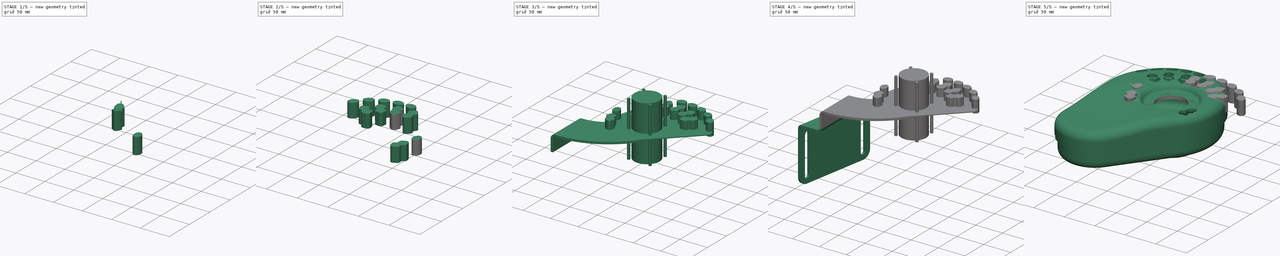
[diagram: build sequence overview — one tinted view per stage of 5, left to right]
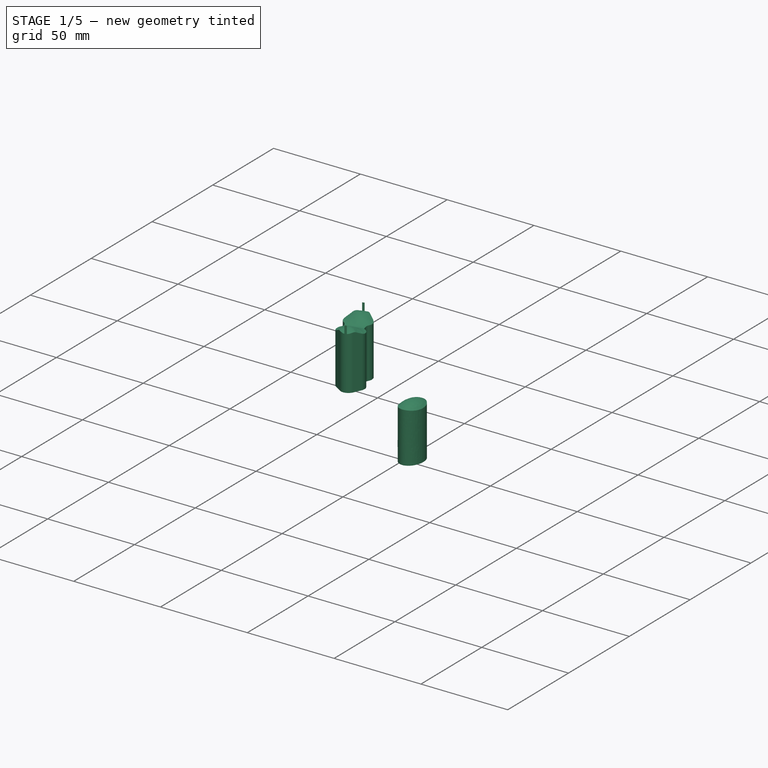
[diagram: stage 1 of 5 — iso view after this stage's code; geometry added in this stage tinted green]
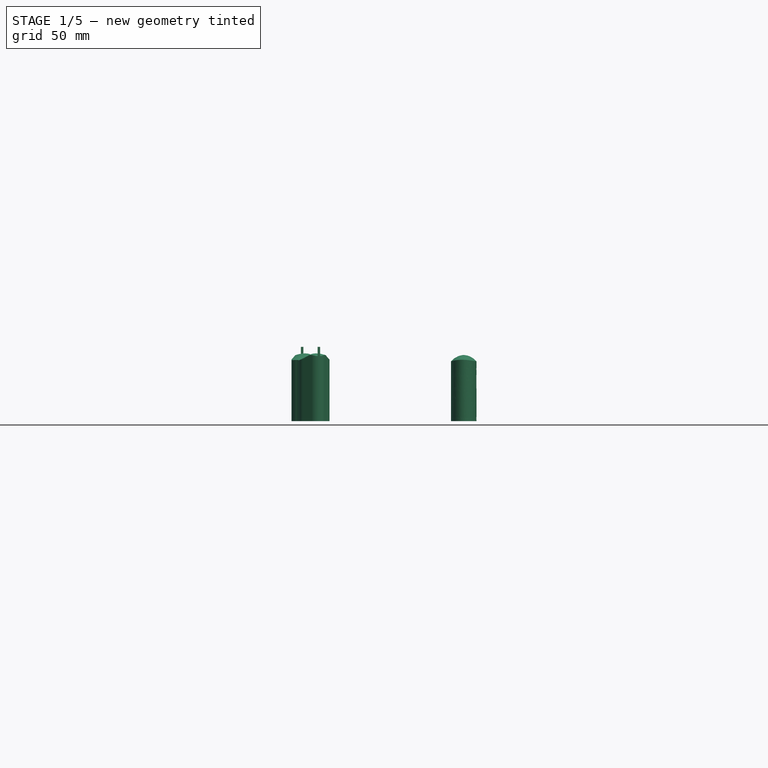
[diagram: stage 1 of 5 — front view after this stage's code; geometry added in this stage tinted green]
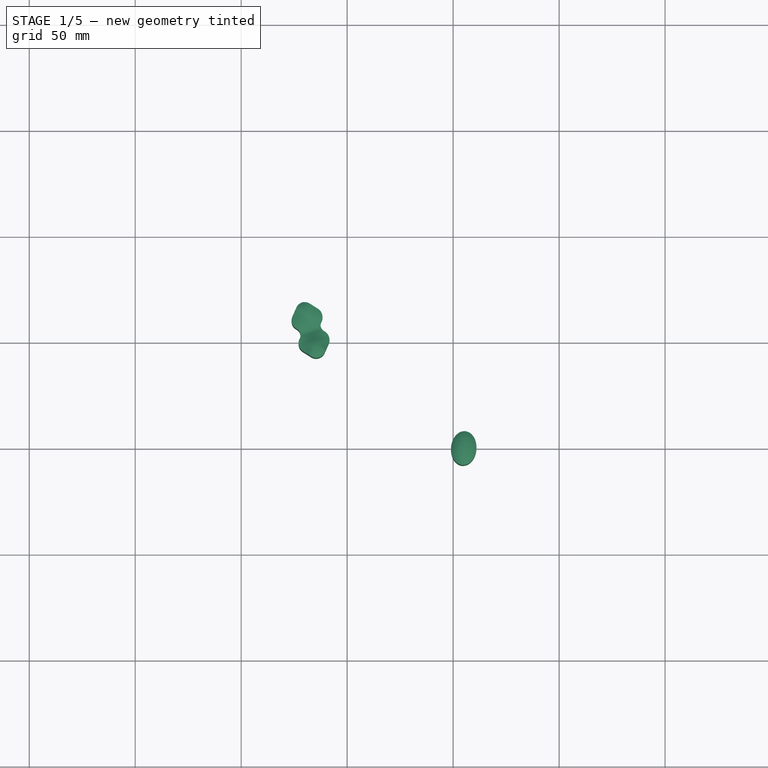
[diagram: stage 1 of 5 — top view after this stage's code; geometry added in this stage tinted green]
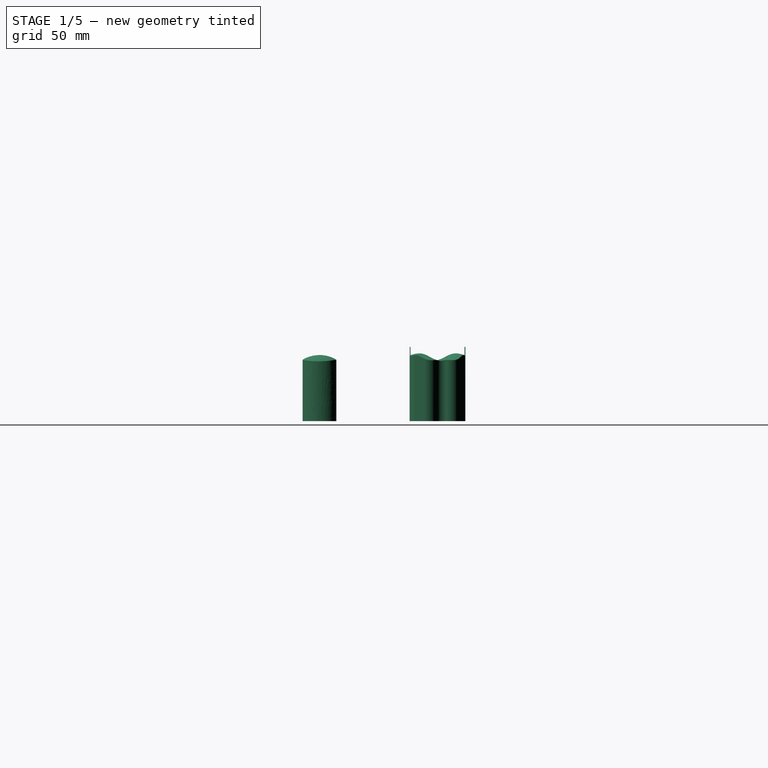
[diagram: stage 1 of 5 — right view after this stage's code; geometry added in this stage tinted green]
FCSTD DOCUMENT  (FreeCAD 0.17R6700 (Git))
Label: pcb_shape
License: All rights reserved
LicenseURL: http://en.wikipedia.org/wiki/All_rights_reserved
objects: Part::FeaturePython×16, Sketcher::SketchObject×6, PartDesign::Pad×3, Part::Mirroring×3, PartDesign::Pocket×3, Part::Cut×2, Part::Feature×2, Part::Box×1, Part::Fillet×1, Part::MultiCommon×1, Part::MultiFuse×1
note: 45 computed .brp shape members not serialized (recipe doc carries the construction recipe); baked Part::Feature solids carry a one-line shape summary decoded from their .brp

FEATURE [Part::Feature] Part__Feature007  label="b1_hole"
  Placement = pos=(-9,78,8) rot=(0,0,-1;0.191986rad)
  shape: bbox 35.08 x 29.36 x 31.2 mm, 4 faces (baked)
FEATURE [Part::Feature] Part__Feature008  label="sw2_hole"
  Placement = pos=(4.8,56.8,7) rot=(0,0,-1;0.087266rad)
  shape: bbox 18.83 x 34.4 x 36.84 mm, 30 faces (baked)
FEATURE [Part::FeaturePython] Clone008  label="sw3_hole"  # Draft clone (typed FeaturePython)
  Objects = -> [Part__Feature008]
  Placement = pos=(-17.3,55.7,8) rot=(0,0,1;0.296706rad)
  Scale = (1,1,1)
FEATURE [Part::FeaturePython] Clone011  label="b2_hole"  # Draft clone (typed FeaturePython)
  Objects = -> [Part__Feature007]
  Placement = pos=(-29,77,8) rot=(0,0,1;0.05236rad)
  Scale = (1,1,1)
FEATURE [Part::FeaturePython] Clone012  label="b3_hole"  # Draft clone (typed FeaturePython)
  Objects = -> [Clone011]
  Placement = pos=(-48.7,72,8) rot=(0,0,1;0.349066rad)
  Scale = (1,1,1)
FEATURE [Part::FeaturePython] Clone013  label="b4_hole"  # Draft clone (typed FeaturePython)
  Objects = -> [Clone012]
  Placement = pos=(-67,62.5,8) rot=(0,0,1;0.610865rad)
  Scale = (1,1,1)
FEATURE [Part::FeaturePython] Clone014  label="b5_hole"  # Draft clone (typed FeaturePython)
  Objects = -> [Clone013]
  Placement = pos=(-81.5,47,8) rot=(0,0,1;0.942478rad)
  Scale = (1,1,1)
FEATURE [Part::FeaturePython] Clone016  label="b6_hole"  # Draft clone (typed FeaturePython)
  Objects = -> [Clone014]
  Placement = pos=(55,0,8) rot=(0,0,1;1.48353rad)
  Scale = (1,1,1)
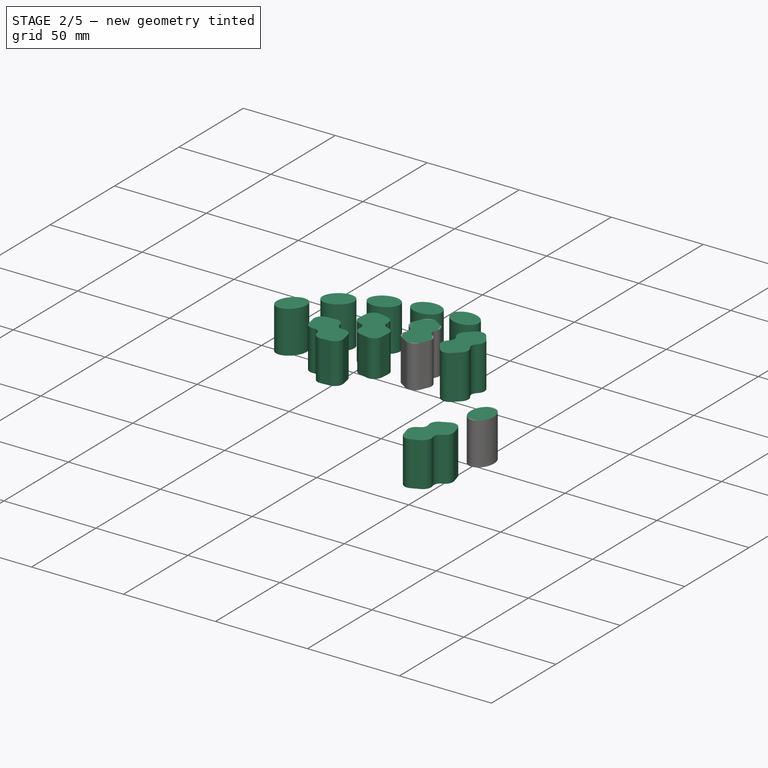
[diagram: stage 2 of 5 — iso view after this stage's code; geometry added in this stage tinted green]
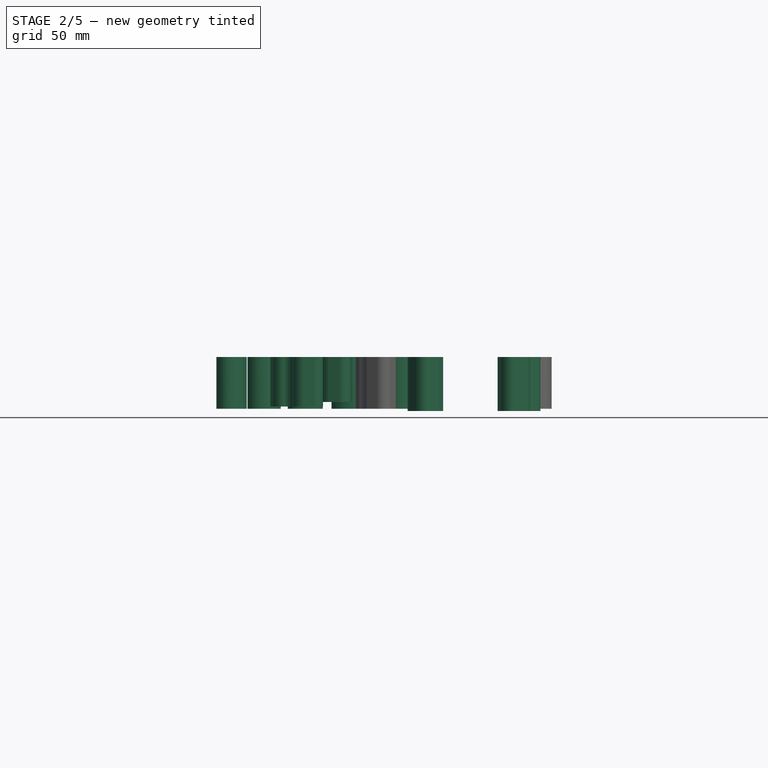
[diagram: stage 2 of 5 — front view after this stage's code; geometry added in this stage tinted green]
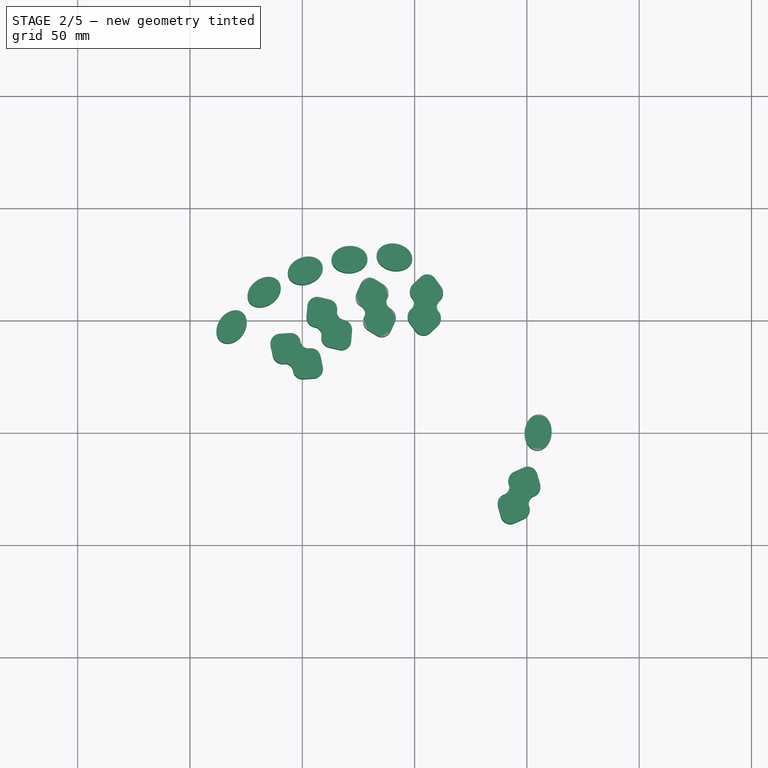
[diagram: stage 2 of 5 — top view after this stage's code; geometry added in this stage tinted green]
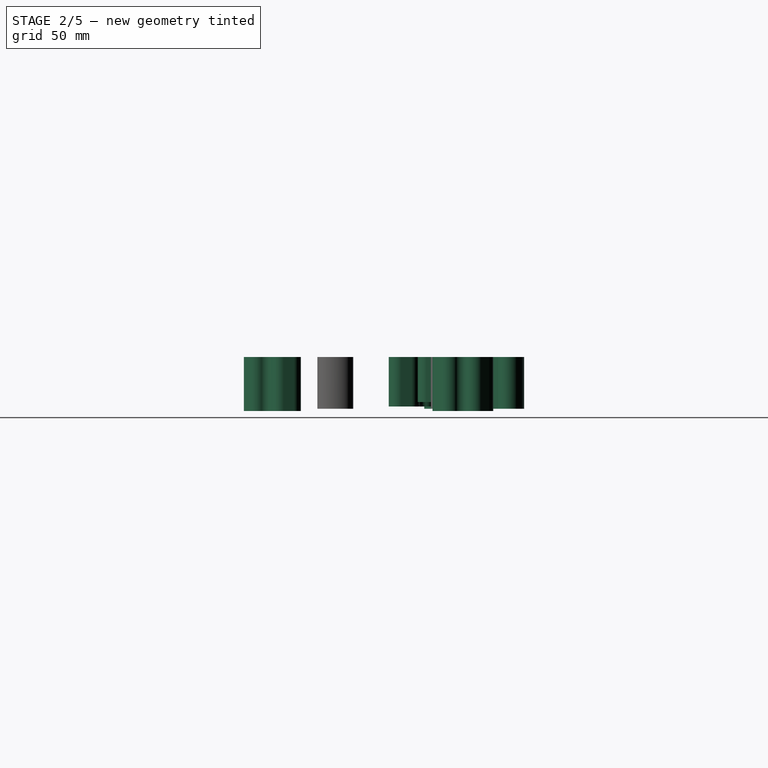
[diagram: stage 2 of 5 — right view after this stage's code; geometry added in this stage tinted green]
FEATURE [Part::Box] Box  label="Cube"
  Height = 27
  Length = 400
  Placement = pos=(-200,-200,15) rot=(0,0,1;0rad)
  Width = 400
FEATURE [Part::FeaturePython] Clone009  label="sw4_hole"  # Draft clone (typed FeaturePython)
  Objects = -> [Clone008]
  Placement = pos=(-38,48.5,11) rot=(0,0,1;0.628319rad)
  Scale = (1,1,1)
FEATURE [Part::FeaturePython] Clone010  label="sw1_hole"  # Draft clone (typed FeaturePython)
  Objects = -> [Clone009]
  Placement = pos=(46.5,-28,7) rot=(0,0,-1;0.436332rad)
  Scale = (1,1,1)
FEATURE [Part::FeaturePython] Clone015  label="sw5_hole"  # Draft clone (typed FeaturePython)
  Objects = -> [Clone009]
  Placement = pos=(-52.5,34,9) rot=(0,0,1;0.925025rad)
  Scale = (1,1,1)
FEATURE [Part::MultiFuse] Fusion006
  Shapes = -> [Clone016,Clone014,Clone009,Clone008,Part__Feature007,Clone015,Clone010,Clone011,Part__Feature008,Clone012,Clone013]
FEATURE [Part::Cut] Cut
  Base = -> Fusion006
  Tool = -> Box
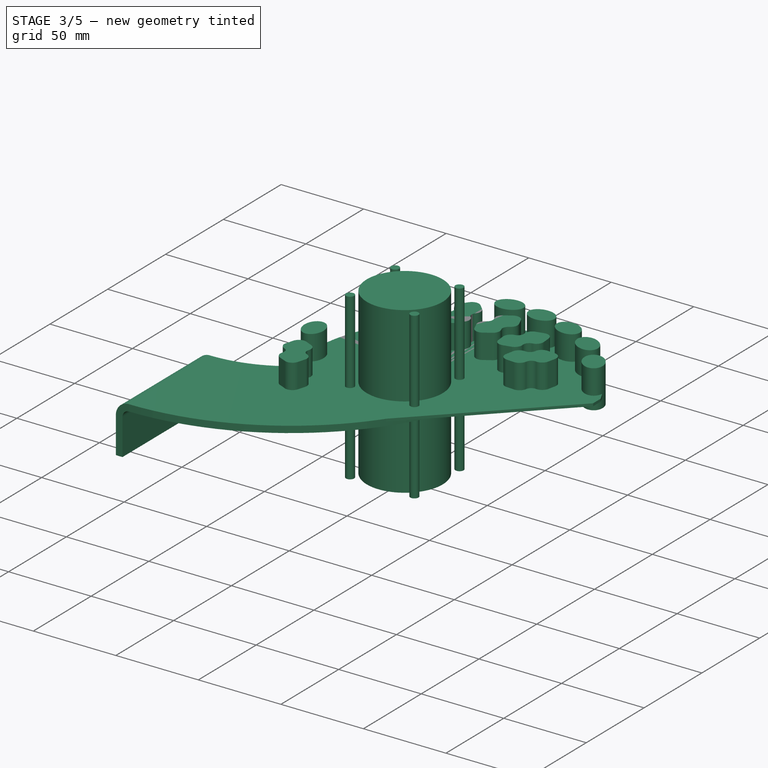
[diagram: stage 3 of 5 — iso view after this stage's code; geometry added in this stage tinted green]
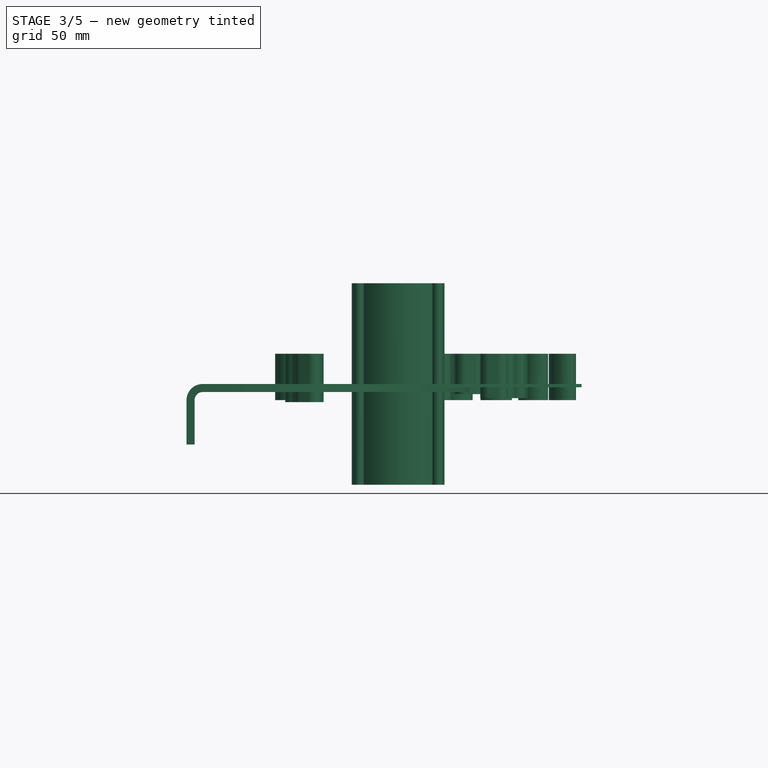
[diagram: stage 3 of 5 — front view after this stage's code; geometry added in this stage tinted green]
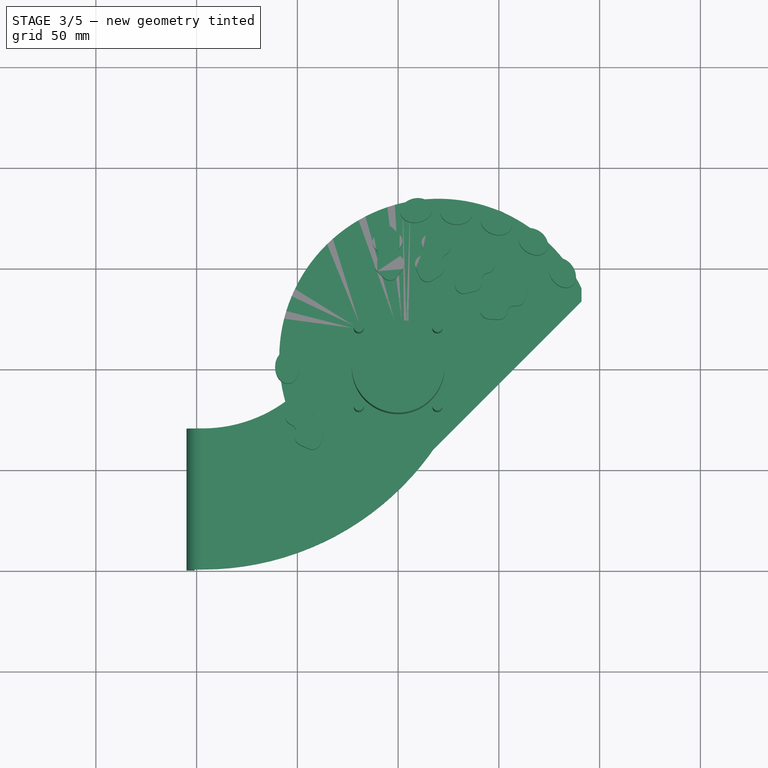
[diagram: stage 3 of 5 — top view after this stage's code; geometry added in this stage tinted green]
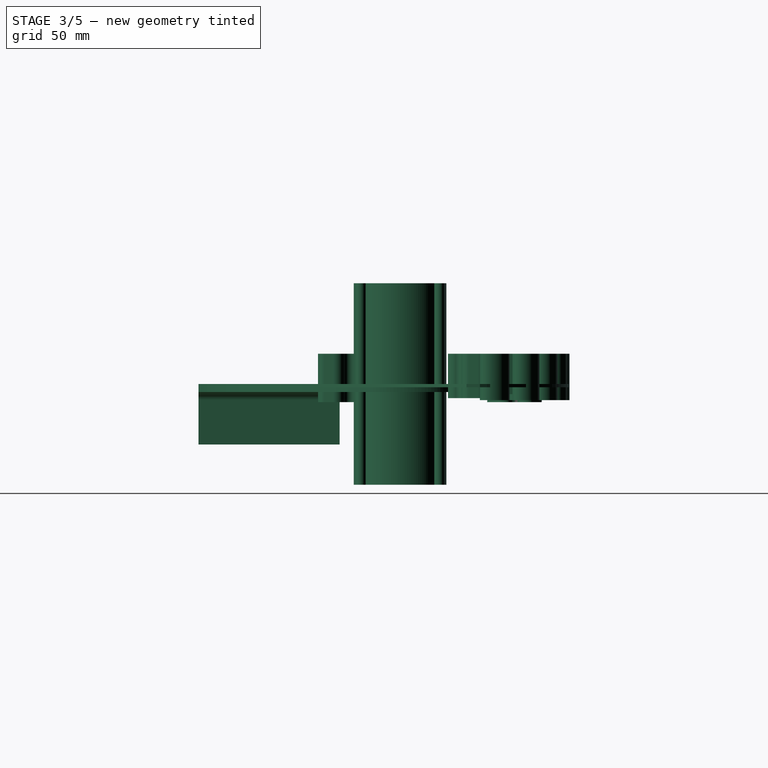
[diagram: stage 3 of 5 — right view after this stage's code; geometry added in this stage tinted green]
FEATURE [Sketcher::SketchObject] Sketch
  Placement = pos=(0,0,-1.6) rot=(0,0,1;0rad)
  sketch-geometry (14):
    g0: LineSegment [constr] StartX=59 StartY=-47 StartZ=0 EndX=-41 EndY=-47 EndZ=0
    g1: LineSegment [constr] StartX=59 StartY=-47 StartZ=0 EndX=59 EndY=53 EndZ=0
    g2: Circle CenterX=-19.5 CenterY=-19.5 CenterZ=0 NormalX=0 NormalY=0 NormalZ=1 Radius=2.7
    g3: Circle CenterX=-19.5 CenterY=19.5 CenterZ=0 NormalX=0 NormalY=0 NormalZ=1 Radius=2.7
    g4: Circle CenterX=19.5 CenterY=19.5 CenterZ=0 NormalX=0 NormalY=0 NormalZ=1 Radius=2.7
    g5: Circle CenterX=19.5 CenterY=-19.5 CenterZ=0 NormalX=0 NormalY=0 NormalZ=1 Radius=2.7
    g6: Circle CenterX=0 CenterY=0 CenterZ=0 NormalX=0 NormalY=0 NormalZ=1 Radius=23.5
    g7: ArcOfCircle CenterX=-20 CenterY=5 CenterZ=0 NormalX=0 NormalY=0 NormalZ=1 Radius=79 StartAngle=9.63004e-07 EndAngle=2.68767
    g8: LineSegment StartX=-91 StartY=33 StartZ=0 EndX=-11 EndY=-47 EndZ=0
    g9: ArcOfCircle CenterX=-20 CenterY=5 CenterZ=0 NormalX=0 NormalY=0 NormalZ=1 Radius=79 StartAngle=5.56472 EndAngle=6.28318
    g10: LineSegment StartX=39.4727 StartY=-47 StartZ=0 EndX=-11 EndY=-47 EndZ=0
    g11: LineSegment StartX=59 StartY=4.99992 StartZ=0 EndX=59 EndY=5.00008 EndZ=0
    g12: LineSegment StartX=-91 StartY=33 StartZ=0 EndX=-91 EndY=39.641 EndZ=0
    g13: LineSegment [constr] StartX=0 StartY=84 StartZ=0 EndX=-80 EndY=84 EndZ=0
  constraints (42):
    c: Horizontal(g0)
    c: DistanceX(g0,g0) = 100
    c: Coincident(g1,g0)
    c: Vertical(g1)
    c: DistanceY(g1,g1) = 100
    c: Symmetric(g5,g2,g-2)
    c: Symmetric(g3,g2,g-1)
    c: Symmetric(g3,g4,g-2)
    c: Equal(g4,g3)
    c: Equal(g3,g2)
    c: Equal(g2,g5)
    c: Radius(g5) = 2.7
    c: DistanceX(g-1,g5) = 19.5
    c: DistanceY(g5,g-1) = 19.5
    c: DistanceY(g0,g-1) = 47
    c: DistanceX(g-1,g0) = 59
    c: Coincident(g6,g-1)
    c: Radius(g6) = 23.5
    c: DistanceX(g7,g-1) = 20
    c: Radius(g7) = 79
    c: PointOnObject(g8,g0)
    c: Angle(g8) = -0.785398
    c: DistanceX(g8,g0) = 70
    c: Coincident(g9,g7)
    c: PointOnObject(g9,g1)
    c: PointOnObject(g9,g0)
    c: Coincident(g10,g9)
    c: Horizontal(g10)
    c: Coincident(g8,g10)
    c: Coincident(g11,g9)
    c: Vertical(g11)
    c: Vertical(g12)
    c: Coincident(g7,g12)
    c: Coincident(g8,g12)
    c: DistanceX(g8,g11) = 150
    c: Coincident(g7,g11)
    c: PointOnObject(g13,g-2)
    c: Horizontal(g13)
    c: DistanceX(g13,g13) = 80
    c: Tangent(g13,g7)
    c: DistanceY(g-1,g7) = 5
    c: Equal(g7,g9)
FEATURE [PartDesign::Pad] Pad  label="pcb_shape"
  Length = 1.6
  Length2 = 100
  Placement = pos=(0,0,-1.6) rot=(0,0,1;0rad)
  Sketch = -> Sketch
  Type = 0
FEATURE [Part::Mirroring] Part__Mirroring  label="pcb_shape (Mirror #1)"
  Base = (0,0,0)
  Normal = (1,0,0)
  Source = -> Pad
FEATURE [Sketcher::SketchObject] Sketch019
  sketch-geometry (5):
    g0: ArcOfCircle CenterX=0 CenterY=0 CenterZ=0 NormalX=0 NormalY=0 NormalZ=1 Radius=35 StartAngle=5.89314 EndAngle=9.03474
    g1: ArcOfCircle CenterX=-97 CenterY=39.8769 CenterZ=0 NormalX=0 NormalY=0 NormalZ=1 Radius=69.8769 StartAngle=4.71239 EndAngle=5.89314
    g2: ArcOfCircle CenterX=-97 CenterY=39.8769 CenterZ=0 NormalX=0 NormalY=0 NormalZ=1 Radius=139.877 StartAngle=4.71239 EndAngle=5.89314
    g3: LineSegment StartX=-97 StartY=-100 StartZ=0 EndX=-97 EndY=-30 EndZ=0
    g4: LineSegment [constr] StartX=-97 StartY=39.8769 StartZ=0 EndX=-97 EndY=-30 EndZ=0
  constraints (16):
    c: Coincident(g0,g-1)
    c: Radius(g0) = 35
    c: Coincident(g1,g0)
    c: Tangent(g1,g0)
    c: Coincident(g0,g2)
    c: Tangent(g0,g2)
    c: Coincident(g3,g2)
    c: Coincident(g3,g1)
    c: Coincident(g4,g1)
    c: PointOnObject(g1,g4)
    c: Coincident(g2,g4)
    c: Angle(g4) = -1.5708
    c: Parallel(g3,g4)
    c: Distance(g3) = 70
    c: DistanceX(g1,g-1) = 97
    c: DistanceY(g1,g-1) = 30
FEATURE [PartDesign::Pad] Pad005
  Length = 4
  Length2 = 100
  Reversed = true
  Sketch = -> Sketch019
  Type = 0
FEATURE [Part::FeaturePython] Bend003  # WARN: FeaturePython — macro-defined, semantics opaque (R4)
  angle = 90
  baseObject = -> Pad005 [Face3]
  gap1 = 0
  gap2 = 0
  invert = false
  length = 22
  radius = 4
  reliefd = 2
  reliefw = 0
FEATURE [Sketcher::SketchObject] Sketch014
  Placement = pos=(0,0,-50) rot=(0,0,1;0rad)
  sketch-geometry (5):
    g0: Circle CenterX=0 CenterY=0 CenterZ=0 NormalX=0 NormalY=0 NormalZ=1 Radius=23
    g1: Circle CenterX=19.5 CenterY=-19.5 CenterZ=0 NormalX=0 NormalY=0 NormalZ=1 Radius=2.5
    g2: Circle CenterX=19.5 CenterY=19.5 CenterZ=0 NormalX=0 NormalY=0 NormalZ=1 Radius=2.5
    g3: Circle CenterX=-19.5 CenterY=19.5 CenterZ=0 NormalX=0 NormalY=0 NormalZ=1 Radius=2.5
    g4: Circle CenterX=-19.5 CenterY=-19.5 CenterZ=0 NormalX=0 NormalY=0 NormalZ=1 Radius=2.5
  constraints (11):
    c: Coincident(g0,g-1)
    c: Equal(g3,g4)
    c: Equal(g4,g1)
    c: Equal(g1,g2)
    c: Symmetric(g2,g1,g-1)
    c: Symmetric(g1,g4,g-2)
    c: Symmetric(g4,g3,g-1)
    c: DistanceX(g3,g-1) = 19.5
    c: DistanceY(g-1,g3) = 19.5
    c: Radius(g3) = 2.5
    c: Radius(g0) = 23
FEATURE [PartDesign::Pad] Pad002  label="joystick_pocket001"
  Length = 100
  Length2 = 100
  Placement = pos=(0,0,-50) rot=(0,0,1;0rad)
  Sketch = -> Sketch014
  Type = 0
FEATURE [Part::FeaturePython] Clone  label="Clone of pcb_shape (Mirror #1)"  # Draft clone (typed FeaturePython)
  Objects = -> [Part__Mirroring]
  Scale = (1,1,1)
FEATURE [Part::Mirroring] Part__Mirroring002  label="Cut (Mirror #3)"
  Base = (0,0,0)
  Normal = (1,0,0)
  Source = -> Cut
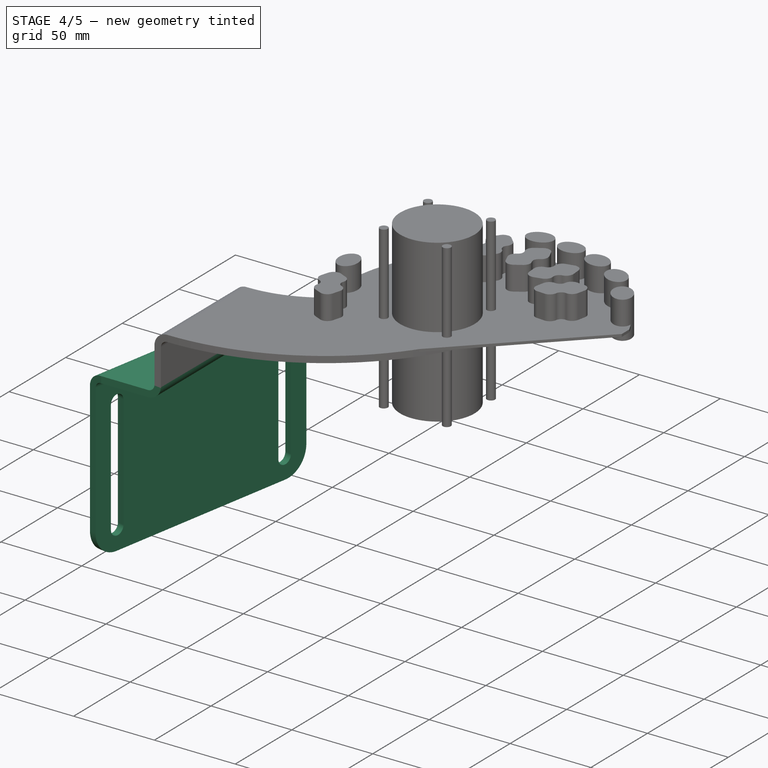
[diagram: stage 4 of 5 — iso view after this stage's code; geometry added in this stage tinted green]
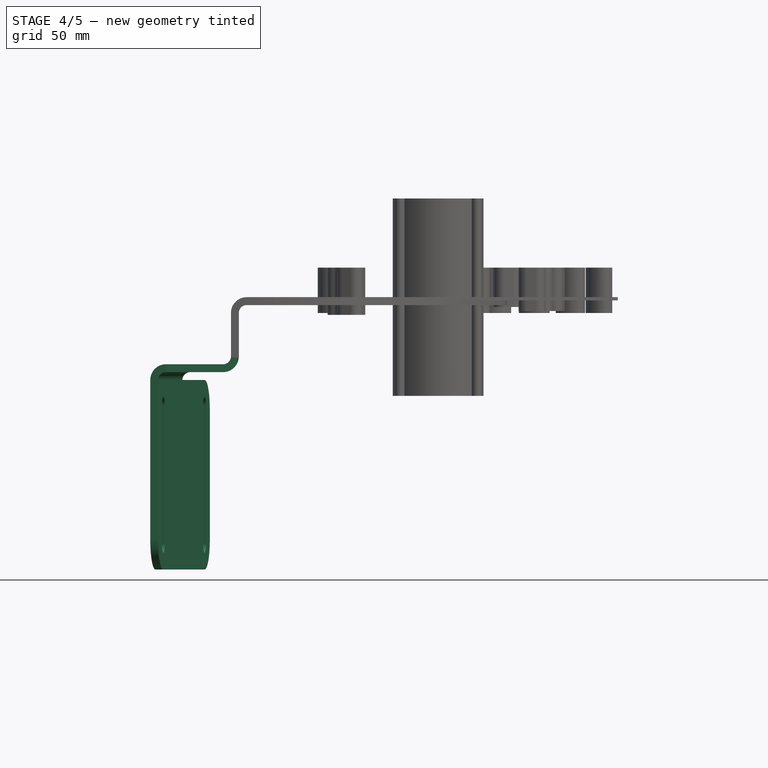
[diagram: stage 4 of 5 — front view after this stage's code; geometry added in this stage tinted green]
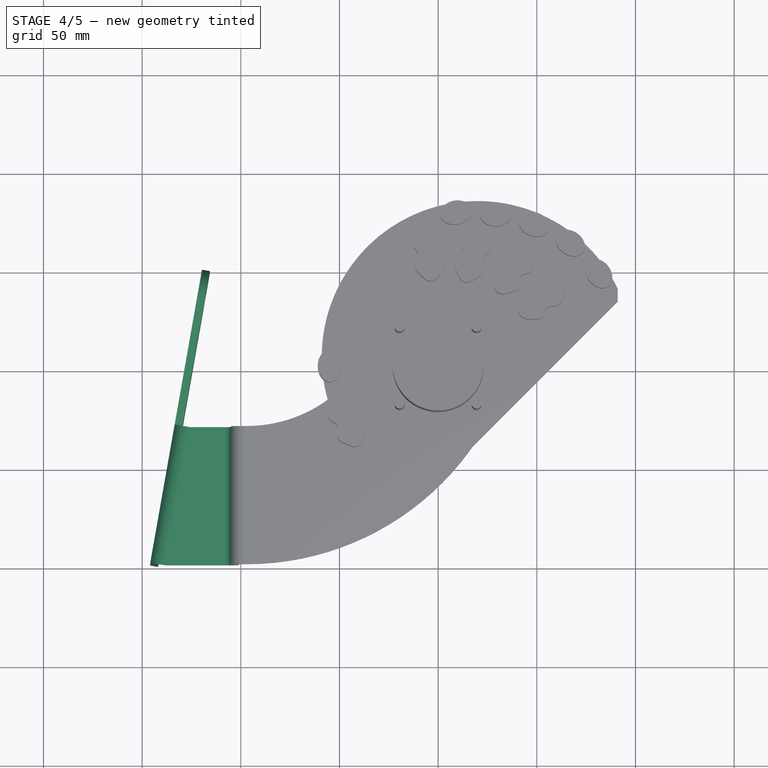
[diagram: stage 4 of 5 — top view after this stage's code; geometry added in this stage tinted green]
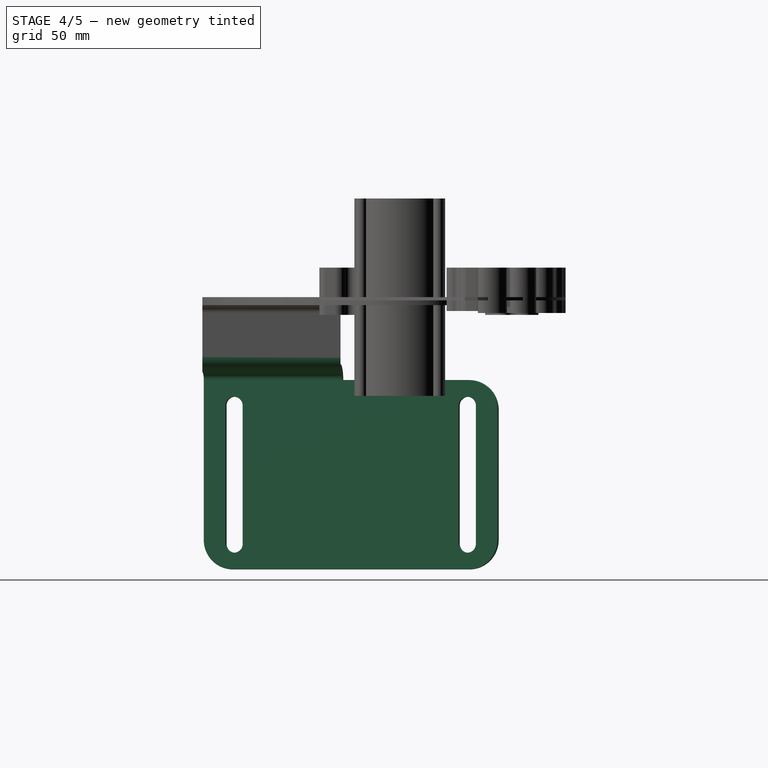
[diagram: stage 4 of 5 — right view after this stage's code; geometry added in this stage tinted green]
FEATURE [Part::FeaturePython] Bend004  # WARN: FeaturePython — macro-defined, semantics opaque (R4)
  angle = 90
  baseObject = -> Bend003 [Face1]
  gap1 = 0
  gap2 = 0
  invert = true
  length = 29
  radius = 4
  reliefd = 1
  reliefw = 0.5
FEATURE [Sketcher::SketchObject] Sketch020
  ExternalGeometry = -> [Bend004]
  Placement = pos=(0,0,-34) rot=(0,0,1;0rad)
  Support = -> Bend004 [Face4]
  sketch-geometry (3):
    g0: LineSegment StartX=-138 StartY=-30 StartZ=0 EndX=-138 EndY=-100 EndZ=0
    g1: LineSegment StartX=-138 StartY=-100 StartZ=0 EndX=-125.657 EndY=-30 EndZ=0
    g2: LineSegment StartX=-125.657 StartY=-30 StartZ=0 EndX=-138 EndY=-30 EndZ=0
  constraints (7):
    c: Coincident(g-4,g0)
    c: Coincident(g0,g-5)
    c: Coincident(g0,g1)
    c: PointOnObject(g1,g-4)
    c: Coincident(g1,g2)
    c: Coincident(g2,g0)
    c: Angle(g1) = 1.39626
FEATURE [PartDesign::Pocket] Pocket
  Length = 5
  Sketch = -> Sketch020
  Type = 1
FEATURE [Part::FeaturePython] Bend  # WARN: FeaturePython — macro-defined, semantics opaque (R4)
  angle = 90
  baseObject = -> Pocket [Face4]
  gap1 = 0
  gap2 = 0
  invert = false
  length = 96
  radius = 4
  reliefd = 1
  reliefw = 0.5
FEATURE [Part::FeaturePython] Extrude  # WARN: FeaturePython — macro-defined, semantics opaque (R4)
  baseObject = -> Bend [Face3]
  gap1 = 0
  gap2 = 0
  length = 80
FEATURE [Part::Fillet] Fillet
  Base = -> Extrude
  Edges = 3 edges r=15: [Edge7,Edge10,Edge20]
FEATURE [Sketcher::SketchObject] Sketch021
  ExternalGeometry = -> [Fillet]
  Placement = pos=(-124.616,24.9732,0) rot=(-0.510274,0.60812,0.60812;4.08526rad)
  Support = -> Fillet [Face1]
  sketch-geometry (11):
    g0: ArcOfCircle CenterX=-13.0957 CenterY=-55 CenterZ=0 NormalX=0 NormalY=0 NormalZ=1 Radius=4.5 StartAngle=0 EndAngle=3.14159
    g1: ArcOfCircle CenterX=-13.0957 CenterY=-125 CenterZ=0 NormalX=0 NormalY=0 NormalZ=1 Radius=4.5 StartAngle=3.14159 EndAngle=6.28319
    g2: LineSegment StartX=-17.5957 StartY=-55 StartZ=0 EndX=-17.5957 EndY=-125 EndZ=0
    g3: LineSegment StartX=-8.59571 StartY=-55 StartZ=0 EndX=-8.59571 EndY=-125 EndZ=0
    g4: ArcOfCircle CenterX=106.904 CenterY=-55 CenterZ=0 NormalX=0 NormalY=0 NormalZ=1 Radius=4.5 StartAngle=0 EndAngle=3.14159
    g5: ArcOfCircle CenterX=106.904 CenterY=-125 CenterZ=0 NormalX=0 NormalY=0 NormalZ=1 Radius=4.5 StartAngle=3.14159 EndAngle=6.28319
    g6: LineSegment StartX=102.404 StartY=-55 StartZ=0 EndX=102.404 EndY=-125 EndZ=0
    g7: LineSegment StartX=111.404 StartY=-55 StartZ=0 EndX=111.404 EndY=-125 EndZ=0
    g8: LineSegment [constr] StartX=-28.6356 StartY=-90 StartZ=0 EndX=122.444 EndY=-90 EndZ=0
    g9: LineSegment [constr] StartX=46.9043 StartY=-42 StartZ=0 EndX=46.9043 EndY=-138 EndZ=0
    g10: LineSegment [constr] StartX=46.9043 StartY=-42 StartZ=0 EndX=51.3644 EndY=-42 EndZ=0
  constraints (28):
    c: Tangent(g0,g3) = 1.5708
    c: Tangent(g0,g2) = -1.5708
    c: Tangent(g2,g1) = -1.5708
    c: Tangent(g3,g1) = 1.5708
    c: Vertical(g2)
    c: Equal(g0,g1)
    c: Tangent(g4,g7) = 1.5708
    c: Tangent(g4,g6) = -1.5708
    c: Tangent(g6,g5) = -1.5708
    c: Tangent(g7,g5) = 1.5708
    c: Vertical(g6)
    c: Equal(g4,g5)
    c: PointOnObject(g8,g-4)
    c: PointOnObject(g8,g-7)
    c: Symmetric(g4,g0,g9)
    c: Equal(g0,g4)
    c: Equal(g6,g3)
    c: Radius(g0) = 4.5
    c: DistanceX(g0,g4) = 120
    c: Symmetric(g1,g0,g8)
    c: Vertical(g9)
    c: Symmetric(g-4,g-7,g9)
    c: Symmetric(g-4,g-4,g8)
    c: DistanceY(g1,g0) = 70
    c: PointOnObject(g9,g-6)
    c: Coincident(g10,g9)
    c: Coincident(g10,g-3)
    c: Horizontal(g10)
FEATURE [PartDesign::Pocket] Pocket001
  Length = 5
  Sketch = -> Sketch021
  Type = 1
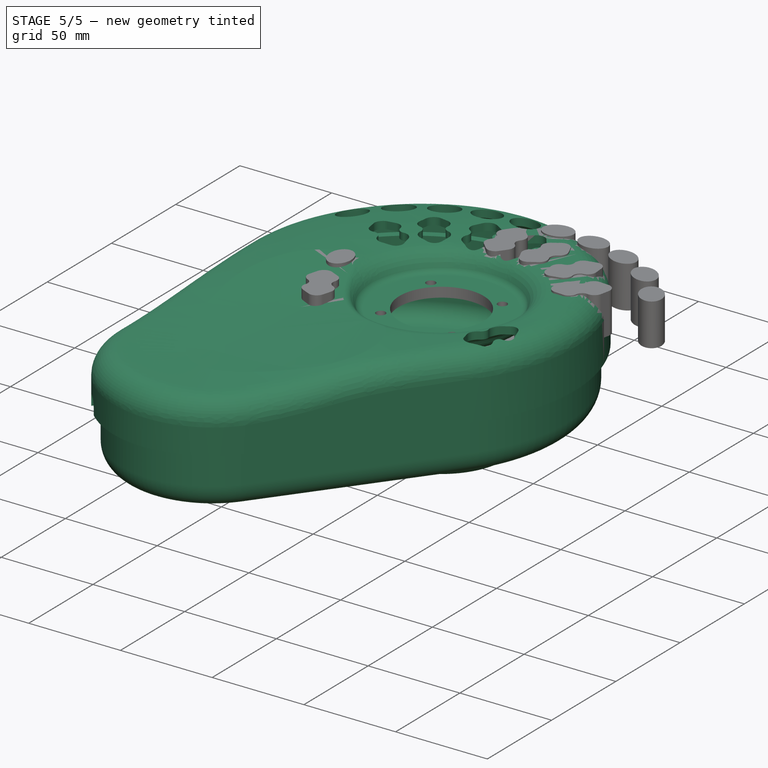
[diagram: stage 5 of 5 — iso view after this stage's code; geometry added in this stage tinted green]
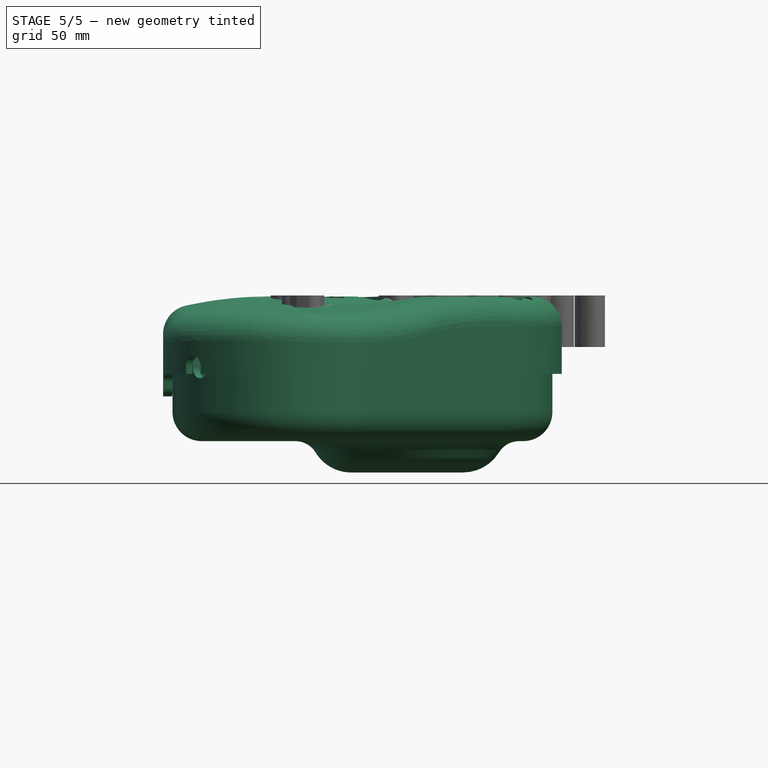
[diagram: stage 5 of 5 — front view after this stage's code; geometry added in this stage tinted green]
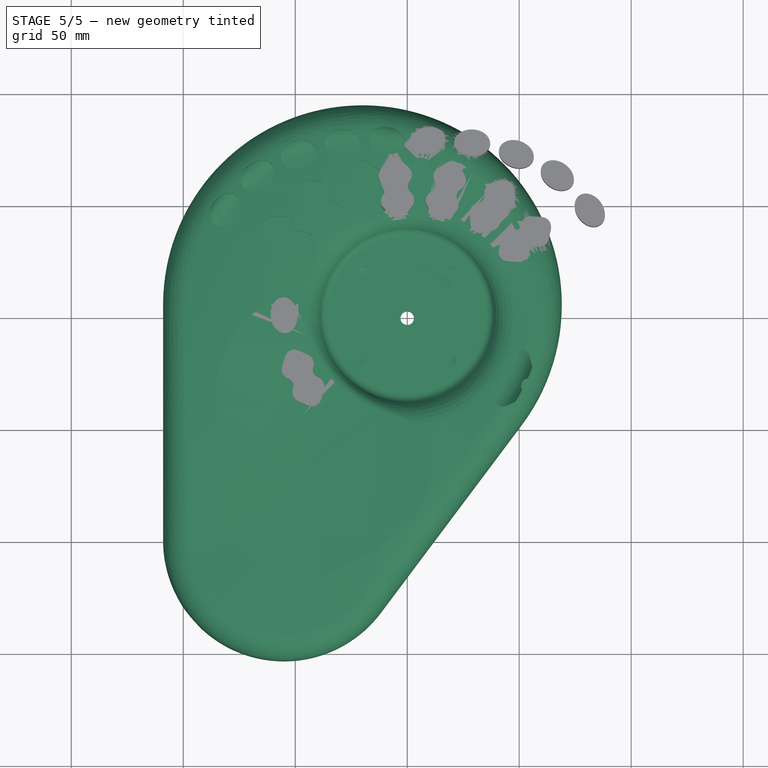
[diagram: stage 5 of 5 — top view after this stage's code; geometry added in this stage tinted green]
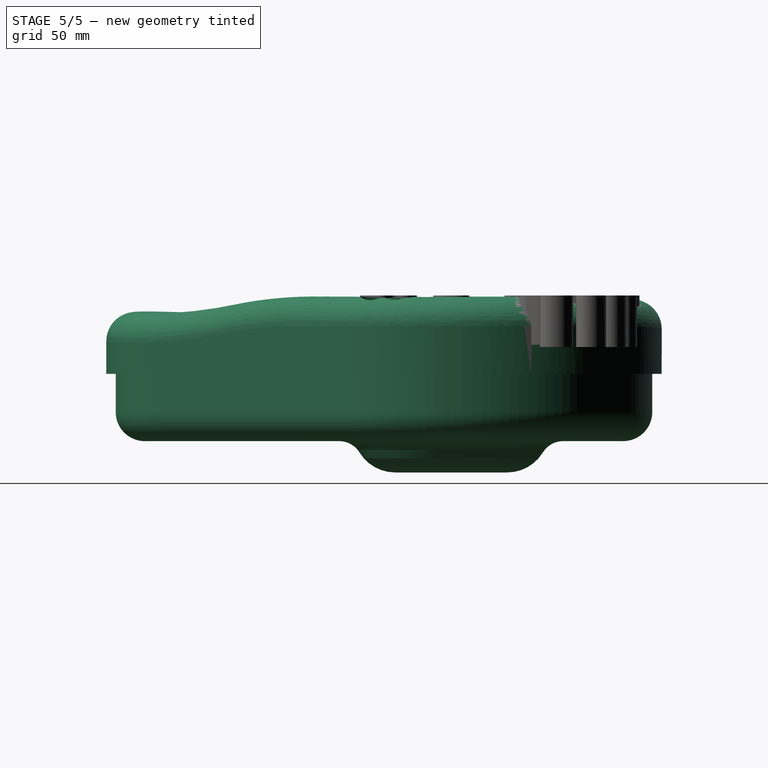
[diagram: stage 5 of 5 — right view after this stage's code; geometry added in this stage tinted green]
FEATURE [Part::FeaturePython] collar_top_01  # a2plus imported part (geometry in sourceFile) (typed FeaturePython)
  fixedPosition = true
  sourceFile = <userpath>/uw/keypad/hw/collar_top.fcstd
  timeLastImport = 1.51211e+09
  updateColors = true
FEATURE [Part::FeaturePython] collar_bottom_01  # a2plus imported part (geometry in sourceFile) (typed FeaturePython)
  fixedPosition = false
  sourceFile = <userpath>/uw/keypad/hw/collar_bottom.fcstd
  timeLastImport = 1.51211e+09
  updateColors = true
FEATURE [Part::Cut] Cut001
  Base = -> Pocket001
  Tool = -> Pad002
FEATURE [Sketcher::SketchObject] Sketch022
  ExternalGeometry = -> [Cut001]
  Placement = pos=(-101,1e-11,0) rot=(0.57735,0.57735,0.57735;2.0944rad)
  Support = -> Cut001 [Face36]
  sketch-geometry (10):
    g0: LineSegment [constr] StartX=-85 StartY=-18 StartZ=0 EndX=-45 EndY=-18 EndZ=0
    g1: LineSegment [constr] StartX=-65 StartY=-8 StartZ=0 EndX=-65 EndY=-30 EndZ=0
    g2: ArcOfCircle CenterX=-85 CenterY=-16 CenterZ=0 NormalX=0 NormalY=0 NormalZ=1 Radius=2.75 StartAngle=0 EndAngle=3.14159
    g3: ArcOfCircle CenterX=-85 CenterY=-20 CenterZ=0 NormalX=0 NormalY=0 NormalZ=1 Radius=2.75 StartAngle=3.14159 EndAngle=6.28319
    g4: LineSegment StartX=-87.75 StartY=-16 StartZ=0 EndX=-87.75 EndY=-20 EndZ=0
    g5: LineSegment StartX=-82.25 StartY=-16 StartZ=0 EndX=-82.25 EndY=-20 EndZ=0
    g6: ArcOfCircle CenterX=-45 CenterY=-16 CenterZ=0 NormalX=0 NormalY=0 NormalZ=1 Radius=2.75 StartAngle=0 EndAngle=3.14159
    g7: ArcOfCircle CenterX=-45 CenterY=-20 CenterZ=0 NormalX=0 NormalY=0 NormalZ=1 Radius=2.75 StartAngle=3.14159 EndAngle=6.28319
    g8: LineSegment StartX=-47.75 StartY=-16 StartZ=0 EndX=-47.75 EndY=-20 EndZ=0
    g9: LineSegment StartX=-42.25 StartY=-16 StartZ=0 EndX=-42.25 EndY=-20 EndZ=0
  constraints (24):
    c: PointOnObject(g1,g-6)
    c: PointOnObject(g1,g-5)
    c: Symmetric(g-5,g-5,g1)
    c: DistanceX(g0,g0) = 40
    c: Tangent(g2,g5) = 1.5708
    c: Tangent(g2,g4) = -1.5708
    c: Tangent(g4,g3) = -1.5708
    c: Tangent(g5,g3) = 1.5708
    c: Vertical(g4)
    c: Equal(g2,g3)
    c: Radius(g3) = 2.75
    c: Symmetric(g2,g3,g0)
    c: Symmetric(g0,g0,g1)
    c: DistanceY(g4,g4) = 4
    c: Tangent(g6,g9) = 1.5708
    c: Tangent(g6,g8) = -1.5708
    c: Tangent(g8,g7) = -1.5708
    c: Tangent(g9,g7) = 1.5708
    c: Vertical(g8)
    c: Equal(g6,g7)
    c: Symmetric(g7,g6,g0)
    c: Equal(g8,g5)
    c: Equal(g2,g6)
    c: DistanceY(g2,g-6) = 8
FEATURE [PartDesign::Pocket] Pocket002
  Length = 5
  Sketch = -> Sketch022
  Type = 1
FEATURE [Part::Mirroring] Part__Mirroring001  label="Pocket002 (Mirror #2)"
  Base = (0,0,0)
  Normal = (1,0,0)
  Source = -> Pocket002
FEATURE [Part::MultiCommon] Common
  Shapes = -> [Clone,Part__Mirroring001]
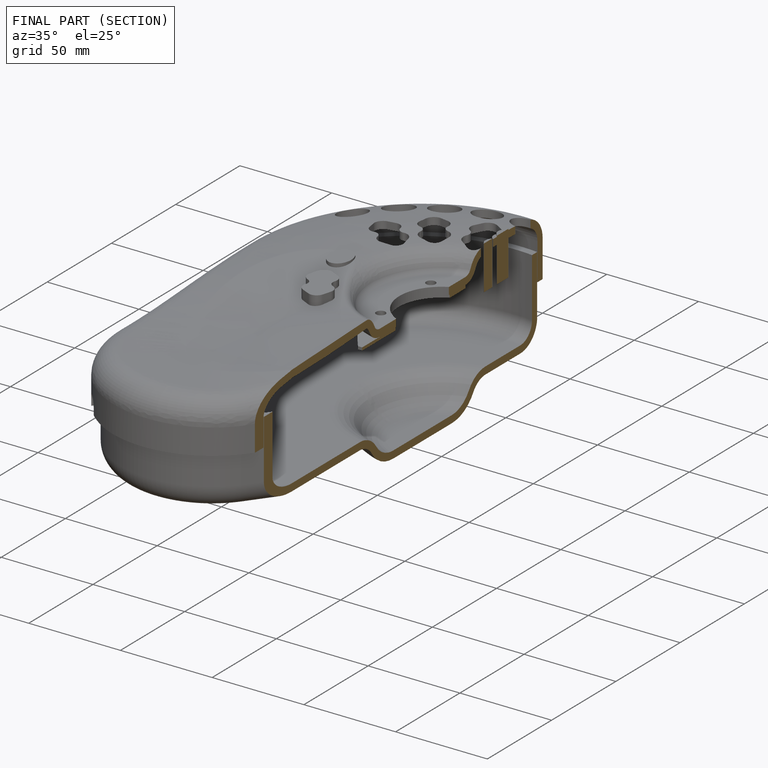
[diagram: finished part — half-section view (interior)]
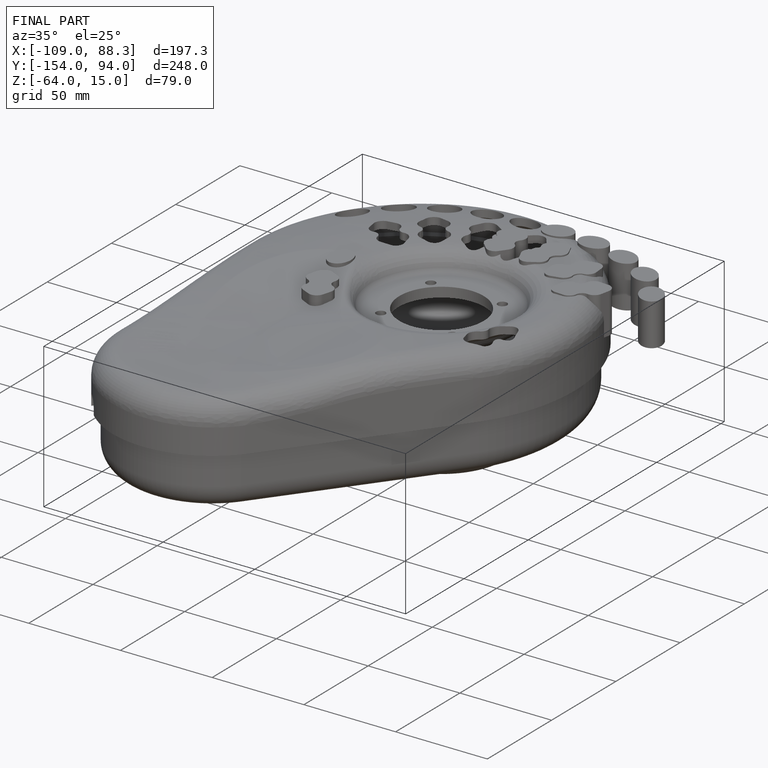
[diagram: finished part — iso view with bounding-box wireframe]
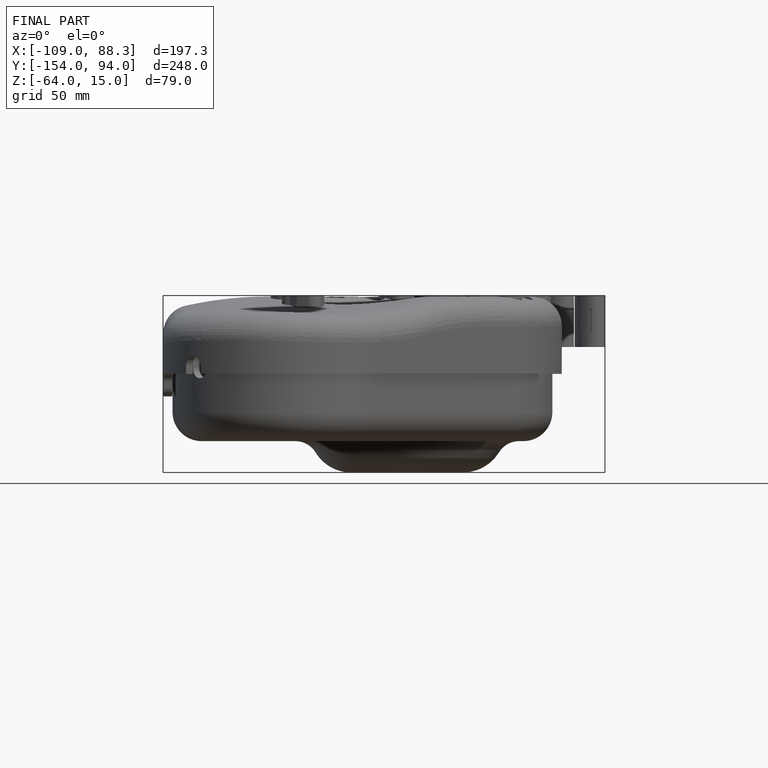
[diagram: finished part — front view with bounding-box wireframe]
